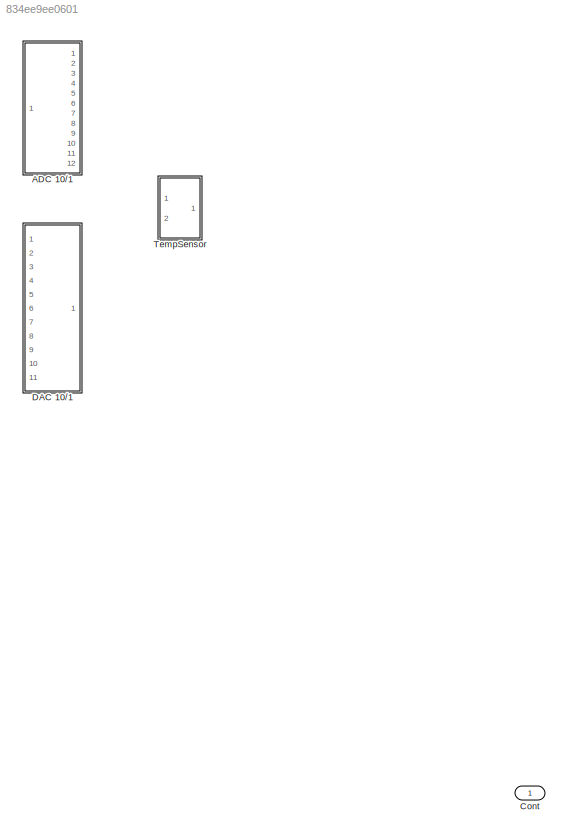
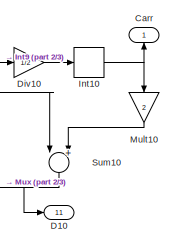
[diagram: ADC 10/1 - part 1/3, top right region]
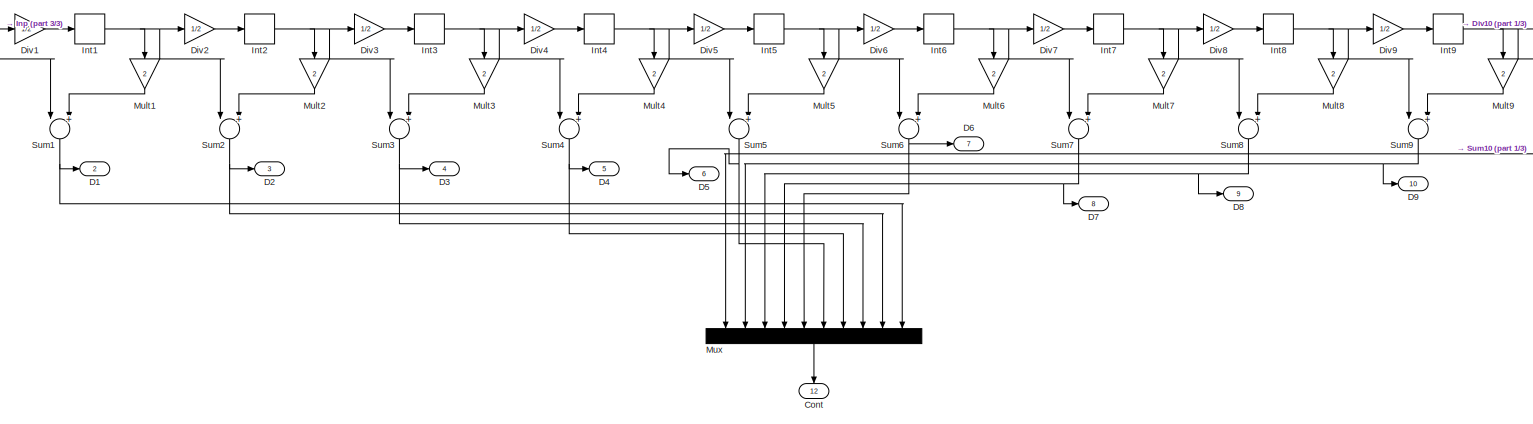
[diagram: ADC 10/1 - part 2/3, most of the canvas]
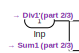
[diagram: ADC 10/1 - part 3/3, top left region]
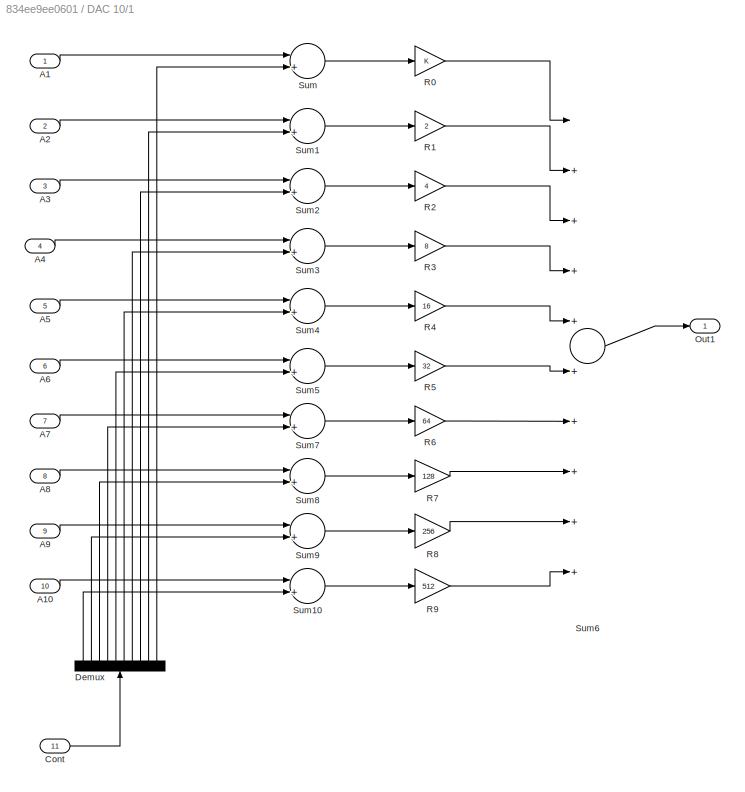
MODEL slx_834ee9ee0601
KIND library
CONFIG AbsTol = auto
CONFIG FixedStep = auto
CONFIG MaxStep = auto
CONFIG MinStep = auto
CONFIG RelTol = 1e-3
CONFIG SampleTimeConstraint = Unconstrained
CONFIG Solver = ode45
CONFIG SolverMode = Auto
CONFIG SolverName = ode45
CONFIG StartTime = 0.0
CONFIG StopTime = 10.0
BLOCK [SubSystem] ADC 10//1
  Ports = [1, 12]
  RequestExecContextInheritance = off
  Variant = off
BLOCK [Outport] ADC 10//1/Carr
  IconDisplay = Port number
  InitialOutput = 0
BLOCK [Outport] ADC 10//1/Cont
  IconDisplay = Port number
  InitialOutput = 0
  Port = 12
BLOCK [Outport] ADC 10//1/D1
  IconDisplay = Port number
  InitialOutput = 0
  Port = 2
BLOCK [Outport] ADC 10//1/D10
  IconDisplay = Port number
  InitialOutput = 0
  Port = 11
BLOCK [Outport] ADC 10//1/D2
  IconDisplay = Port number
  InitialOutput = 0
  Port = 3
BLOCK [Outport] ADC 10//1/D3
  IconDisplay = Port number
  InitialOutput = 0
  Port = 4
BLOCK [Outport] ADC 10//1/D4
  IconDisplay = Port number
  InitialOutput = 0
  Port = 5
BLOCK [Outport] ADC 10//1/D5
  IconDisplay = Port number
  InitialOutput = 0
  Port = 6
BLOCK [Outport] ADC 10//1/D6
  IconDisplay = Port number
  InitialOutput = 0
  Port = 7
BLOCK [Outport] ADC 10//1/D7
  IconDisplay = Port number
  InitialOutput = 0
  Port = 8
BLOCK [Outport] ADC 10//1/D8
  IconDisplay = Port number
  InitialOutput = 0
  Port = 9
BLOCK [Outport] ADC 10//1/D9
  IconDisplay = Port number
  InitialOutput = 0
  Port = 10
BLOCK [Gain] ADC 10//1/Div1
  Gain = 1/2
BLOCK [Gain] ADC 10//1/Div10
  Gain = 1/2
BLOCK [Gain] ADC 10//1/Div2
  Gain = 1/2
BLOCK [Gain] ADC 10//1/Div3
  Gain = 1/2
BLOCK [Gain] ADC 10//1/Div4
  Gain = 1/2
BLOCK [Gain] ADC 10//1/Div5
  Gain = 1/2
BLOCK [Gain] ADC 10//1/Div6
  Gain = 1/2
BLOCK [Gain] ADC 10//1/Div7
  Gain = 1/2
BLOCK [Gain] ADC 10//1/Div8
  Gain = 1/2
BLOCK [Gain] ADC 10//1/Div9
  Gain = 1/2
BLOCK [Inport] ADC 10//1/Inp
  IconDisplay = Port number
BLOCK [Rounding] ADC 10//1/Int1
BLOCK [Rounding] ADC 10//1/Int10
BLOCK [Rounding] ADC 10//1/Int2
BLOCK [Rounding] ADC 10//1/Int3
BLOCK [Rounding] ADC 10//1/Int4
BLOCK [Rounding] ADC 10//1/Int5
BLOCK [Rounding] ADC 10//1/Int6
BLOCK [Rounding] ADC 10//1/Int7
BLOCK [Rounding] ADC 10//1/Int8
BLOCK [Rounding] ADC 10//1/Int9
BLOCK [Gain] ADC 10//1/Mult1
  Gain = 2
BLOCK [Gain] ADC 10//1/Mult10
  Gain = 2
BLOCK [Gain] ADC 10//1/Mult2
  Gain = 2
BLOCK [Gain] ADC 10//1/Mult3
  Gain = 2
BLOCK [Gain] ADC 10//1/Mult4
  Gain = 2
BLOCK [Gain] ADC 10//1/Mult5
  Gain = 2
BLOCK [Gain] ADC 10//1/Mult6
  Gain = 2
BLOCK [Gain] ADC 10//1/Mult7
  Gain = 2
BLOCK [Gain] ADC 10//1/Mult8
  Gain = 2
BLOCK [Gain] ADC 10//1/Mult9
  Gain = 2
BLOCK [Mux] ADC 10//1/Mux
  DisplayOption = bar
  Inputs = 10
  Ports = [10, 1]
BLOCK [Sum] ADC 10//1/Sum1
  InputSameDT = off
  Inputs = |+-
  OutDataTypeStr = Inherit: Inherit via internal rule
  Ports = [2, 1]
BLOCK [Sum] ADC 10//1/Sum10
  InputSameDT = off
  Inputs = |+-
  OutDataTypeStr = Inherit: Inherit via internal rule
  Ports = [2, 1]
BLOCK [Sum] ADC 10//1/Sum2
  InputSameDT = off
  Inputs = |+-
  OutDataTypeStr = Inherit: Inherit via internal rule
  Ports = [2, 1]
BLOCK [Sum] ADC 10//1/Sum3
  InputSameDT = off
  Inputs = |+-
  OutDataTypeStr = Inherit: Inherit via internal rule
  Ports = [2, 1]
BLOCK [Sum] ADC 10//1/Sum4
  InputSameDT = off
  Inputs = |+-
  OutDataTypeStr = Inherit: Inherit via internal rule
  Ports = [2, 1]
BLOCK [Sum] ADC 10//1/Sum5
  InputSameDT = off
  Inputs = |+-
  OutDataTypeStr = Inherit: Inherit via internal rule
  Ports = [2, 1]
BLOCK [Sum] ADC 10//1/Sum6
  InputSameDT = off
  Inputs = |+-
  OutDataTypeStr = Inherit: Inherit via internal rule
  Ports = [2, 1]
BLOCK [Sum] ADC 10//1/Sum7
  InputSameDT = off
  Inputs = |+-
  OutDataTypeStr = Inherit: Inherit via internal rule
  Ports = [2, 1]
BLOCK [Sum] ADC 10//1/Sum8
  InputSameDT = off
  Inputs = |+-
  OutDataTypeStr = Inherit: Inherit via internal rule
  Ports = [2, 1]
BLOCK [Sum] ADC 10//1/Sum9
  InputSameDT = off
  Inputs = |+-
  OutDataTypeStr = Inherit: Inherit via internal rule
  Ports = [2, 1]
BLOCK [Inport] Cont
  IconDisplay = Port number
BLOCK [SubSystem] DAC 10//1
  Ports = [11, 1]
  RequestExecContextInheritance = off
  Variant = off
BLOCK [Inport] DAC 10//1/A1
  IconDisplay = Port number
BLOCK [Inport] DAC 10//1/A10
  IconDisplay = Port number
  Port = 10
BLOCK [Inport] DAC 10//1/A2
  IconDisplay = Port number
  Port = 2
BLOCK [Inport] DAC 10//1/A3
  IconDisplay = Port number
  Port = 3
BLOCK [Inport] DAC 10//1/A4
  IconDisplay = Port number
  Port = 4
BLOCK [Inport] DAC 10//1/A5
  IconDisplay = Port number
  Port = 5
BLOCK [Inport] DAC 10//1/A6
  IconDisplay = Port number
  Port = 6
BLOCK [Inport] DAC 10//1/A7
  IconDisplay = Port number
  Port = 7
BLOCK [Inport] DAC 10//1/A8
  IconDisplay = Port number
  Port = 8
BLOCK [Inport] DAC 10//1/A9
  IconDisplay = Port number
  Port = 9
BLOCK [Inport] DAC 10//1/Cont
  IconDisplay = Port number
  Port = 11
BLOCK [Demux] DAC 10//1/Demux
  Outputs = 10
  Ports = [1, 10]
BLOCK [Outport] DAC 10//1/Out1
  IconDisplay = Port number
  InitialOutput = 0
BLOCK [Gain] DAC 10//1/R0
BLOCK [Gain] DAC 10//1/R1
  Gain = 2
BLOCK [Gain] DAC 10//1/R2
  Gain = 4
BLOCK [Gain] DAC 10//1/R3
  Gain = 8
BLOCK [Gain] DAC 10//1/R4
  Gain = 16
BLOCK [Gain] DAC 10//1/R5
  Gain = 32
BLOCK [Gain] DAC 10//1/R6
  Gain = 64
BLOCK [Gain] DAC 10//1/R7
  Gain = 128
BLOCK [Gain] DAC 10//1/R8
  Gain = 256
BLOCK [Gain] DAC 10//1/R9
  Gain = 512
BLOCK [Sum] DAC 10//1/Sum
  Inputs = |++
  Ports = [2, 1]
BLOCK [Sum] DAC 10//1/Sum1
  Inputs = |++
  Ports = [2, 1]
BLOCK [Sum] DAC 10//1/Sum10
  Inputs = |++
  Ports = [2, 1]
BLOCK [Sum] DAC 10//1/Sum2
  Inputs = |++
  Ports = [2, 1]
BLOCK [Sum] DAC 10//1/Sum3
  Inputs = |++
  Ports = [2, 1]
BLOCK [Sum] DAC 10//1/Sum4
  Inputs = |++
  Ports = [2, 1]
BLOCK [Sum] DAC 10//1/Sum5
  Inputs = |++
  Ports = [2, 1]
BLOCK [Sum] DAC 10//1/Sum6
  Inputs = |++++++++++
  Ports = [10, 1]
BLOCK [Sum] DAC 10//1/Sum7
  Inputs = |++
  Ports = [2, 1]
BLOCK [Sum] DAC 10//1/Sum8
  Inputs = |++
  Ports = [2, 1]
BLOCK [Sum] DAC 10//1/Sum9
  Inputs = |++
  Ports = [2, 1]
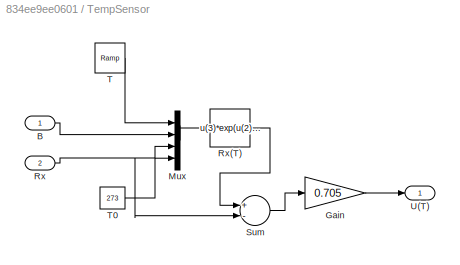
BLOCK [SubSystem] TempSensor
  Ports = [2, 1]
  RequestExecContextInheritance = off
  Variant = off
BLOCK [Inport] TempSensor/B
  IconDisplay = Port number
BLOCK [Gain] TempSensor/Gain
  Gain = 0.705
BLOCK [Mux] TempSensor/Mux
  Ports = [4, 1]
BLOCK [Inport] TempSensor/Rx
  IconDisplay = Port number
  Port = 2
BLOCK [Fcn] TempSensor/Rx(T)
  Expr = u(3)*exp(u(2)*(u(4)-u(1))/(u(4)*u(1)))
BLOCK [Sum] TempSensor/Sum
  Inputs = +-
  Ports = [2, 1]
BLOCK [Reference] TempSensor/T  REF=simulink/Sources/Ramp
  Ports = [0, 1]
  SourceBlock = simulink/Sources/Ramp
  SourceType = Ramp
BLOCK [Constant] TempSensor/T0
  SampleTime = 0
  Value = 273
BLOCK [Outport] TempSensor/U(T)
  IconDisplay = Port number
  InitialOutput = 0
LINE ADC 10//1/Div10:1 -> ADC 10//1/Int10:1
LINE ADC 10//1/Div1:1 -> ADC 10//1/Int1:1
LINE ADC 10//1/Div2:1 -> ADC 10//1/Int2:1
LINE ADC 10//1/Div3:1 -> ADC 10//1/Int3:1
LINE ADC 10//1/Div4:1 -> ADC 10//1/Int4:1
LINE ADC 10//1/Div5:1 -> ADC 10//1/Int5:1
LINE ADC 10//1/Div6:1 -> ADC 10//1/Int6:1
LINE ADC 10//1/Div7:1 -> ADC 10//1/Int7:1
LINE ADC 10//1/Div8:1 -> ADC 10//1/Int8:1
LINE ADC 10//1/Div9:1 -> ADC 10//1/Int9:1
NET ADC 10//1/Inp:1 -> ADC 10//1/Div1:1, ADC 10//1/Sum1:1
NET ADC 10//1/Int10:1 -> ADC 10//1/Carr:1, ADC 10//1/Mult10:1
NET ADC 10//1/Int1:1 -> ADC 10//1/Div2:1, ADC 10//1/Mult1:1, ADC 10//1/Sum2:1
NET ADC 10//1/Int2:1 -> ADC 10//1/Div3:1, ADC 10//1/Mult2:1, ADC 10//1/Sum3:1
NET ADC 10//1/Int3:1 -> ADC 10//1/Div4:1, ADC 10//1/Mult3:1, ADC 10//1/Sum4:1
NET ADC 10//1/Int4:1 -> ADC 10//1/Div5:1, ADC 10//1/Mult4:1, ADC 10//1/Sum5:1
NET ADC 10//1/Int5:1 -> ADC 10//1/Div6:1, ADC 10//1/Mult5:1, ADC 10//1/Sum6:1
NET ADC 10//1/Int6:1 -> ADC 10//1/Div7:1, ADC 10//1/Mult6:1, ADC 10//1/Sum7:1
NET ADC 10//1/Int7:1 -> ADC 10//1/Div8:1, ADC 10//1/Mult7:1, ADC 10//1/Sum8:1
NET ADC 10//1/Int8:1 -> ADC 10//1/Div9:1, ADC 10//1/Mult8:1, ADC 10//1/Sum9:1
NET ADC 10//1/Int9:1 -> ADC 10//1/Div10:1, ADC 10//1/Mult9:1, ADC 10//1/Sum10:1
LINE ADC 10//1/Mult10:1 -> ADC 10//1/Sum10:2
LINE ADC 10//1/Mult1:1 -> ADC 10//1/Sum1:2
LINE ADC 10//1/Mult2:1 -> ADC 10//1/Sum2:2
LINE ADC 10//1/Mult3:1 -> ADC 10//1/Sum3:2
LINE ADC 10//1/Mult4:1 -> ADC 10//1/Sum4:2
LINE ADC 10//1/Mult5:1 -> ADC 10//1/Sum5:2
LINE ADC 10//1/Mult6:1 -> ADC 10//1/Sum6:2
LINE ADC 10//1/Mult7:1 -> ADC 10//1/Sum7:2
LINE ADC 10//1/Mult8:1 -> ADC 10//1/Sum8:2
LINE ADC 10//1/Mult9:1 -> ADC 10//1/Sum9:2
LINE ADC 10//1/Mux:1 -> ADC 10//1/Cont:1
NET ADC 10//1/Sum10:1 -> ADC 10//1/D10:1, ADC 10//1/Mux:1
NET ADC 10//1/Sum1:1 -> ADC 10//1/D1:1, ADC 10//1/Mux:10
NET ADC 10//1/Sum2:1 -> ADC 10//1/D2:1, ADC 10//1/Mux:9
NET ADC 10//1/Sum3:1 -> ADC 10//1/D3:1, ADC 10//1/Mux:8
NET ADC 10//1/Sum4:1 -> ADC 10//1/D4:1, ADC 10//1/Mux:7
NET ADC 10//1/Sum5:1 -> ADC 10//1/D5:1, ADC 10//1/Mux:6
NET ADC 10//1/Sum6:1 -> ADC 10//1/D6:1, ADC 10//1/Mux:5
NET ADC 10//1/Sum7:1 -> ADC 10//1/D7:1, ADC 10//1/Mux:4
NET ADC 10//1/Sum8:1 -> ADC 10//1/D8:1, ADC 10//1/Mux:3
NET ADC 10//1/Sum9:1 -> ADC 10//1/D9:1, ADC 10//1/Mux:2
LINE DAC 10//1/A10:1 -> DAC 10//1/Sum10:1
LINE DAC 10//1/A1:1 -> DAC 10//1/Sum:1
LINE DAC 10//1/A2:1 -> DAC 10//1/Sum1:1
LINE DAC 10//1/A3:1 -> DAC 10//1/Sum2:1
LINE DAC 10//1/A4:1 -> DAC 10//1/Sum3:1
LINE DAC 10//1/A5:1 -> DAC 10//1/Sum4:1
LINE DAC 10//1/A6:1 -> DAC 10//1/Sum5:1
LINE DAC 10//1/A7:1 -> DAC 10//1/Sum7:1
LINE DAC 10//1/A8:1 -> DAC 10//1/Sum8:1
LINE DAC 10//1/A9:1 -> DAC 10//1/Sum9:1
LINE DAC 10//1/Cont:1 -> DAC 10//1/Demux:1
LINE DAC 10//1/Demux:1 -> DAC 10//1/Sum10:2
LINE DAC 10//1/Demux:10 -> DAC 10//1/Sum:2
LINE DAC 10//1/Demux:2 -> DAC 10//1/Sum9:2
LINE DAC 10//1/Demux:3 -> DAC 10//1/Sum8:2
LINE DAC 10//1/Demux:4 -> DAC 10//1/Sum7:2
LINE DAC 10//1/Demux:5 -> DAC 10//1/Sum5:2
LINE DAC 10//1/Demux:6 -> DAC 10//1/Sum4:2
LINE DAC 10//1/Demux:7 -> DAC 10//1/Sum3:2
LINE DAC 10//1/Demux:8 -> DAC 10//1/Sum2:2
LINE DAC 10//1/Demux:9 -> DAC 10//1/Sum1:2
LINE DAC 10//1/R0:1 -> DAC 10//1/Sum6:1
LINE DAC 10//1/R1:1 -> DAC 10//1/Sum6:2
LINE DAC 10//1/R2:1 -> DAC 10//1/Sum6:3
LINE DAC 10//1/R3:1 -> DAC 10//1/Sum6:4
LINE DAC 10//1/R4:1 -> DAC 10//1/Sum6:5
LINE DAC 10//1/R5:1 -> DAC 10//1/Sum6:6
LINE DAC 10//1/R6:1 -> DAC 10//1/Sum6:7
LINE DAC 10//1/R7:1 -> DAC 10//1/Sum6:8
LINE DAC 10//1/R8:1 -> DAC 10//1/Sum6:9
LINE DAC 10//1/R9:1 -> DAC 10//1/Sum6:10
LINE DAC 10//1/Sum10:1 -> DAC 10//1/R9:1
LINE DAC 10//1/Sum1:1 -> DAC 10//1/R1:1
LINE DAC 10//1/Sum2:1 -> DAC 10//1/R2:1
LINE DAC 10//1/Sum3:1 -> DAC 10//1/R3:1
LINE DAC 10//1/Sum4:1 -> DAC 10//1/R4:1
LINE DAC 10//1/Sum5:1 -> DAC 10//1/R5:1
LINE DAC 10//1/Sum6:1 -> DAC 10//1/Out1:1
LINE DAC 10//1/Sum7:1 -> DAC 10//1/R6:1
LINE DAC 10//1/Sum8:1 -> DAC 10//1/R7:1
LINE DAC 10//1/Sum9:1 -> DAC 10//1/R8:1
LINE DAC 10//1/Sum:1 -> DAC 10//1/R0:1
LINE TempSensor/B:1 -> TempSensor/Mux:2
LINE TempSensor/Gain:1 -> TempSensor/U(T):1
LINE TempSensor/Mux:1 -> TempSensor/Rx(T):1
LINE TempSensor/Rx(T):1 -> TempSensor/Sum:1
NET TempSensor/Rx:1 -> TempSensor/Mux:3, TempSensor/Sum:2
LINE TempSensor/Sum:1 -> TempSensor/Gain:1
LINE TempSensor/T0:1 -> TempSensor/Mux:4
LINE TempSensor/T:1 -> TempSensor/Mux:1
note: NET lines group one-source signal fan-out (src -> all destinations, sorted); 1:1 wires keep LINE
